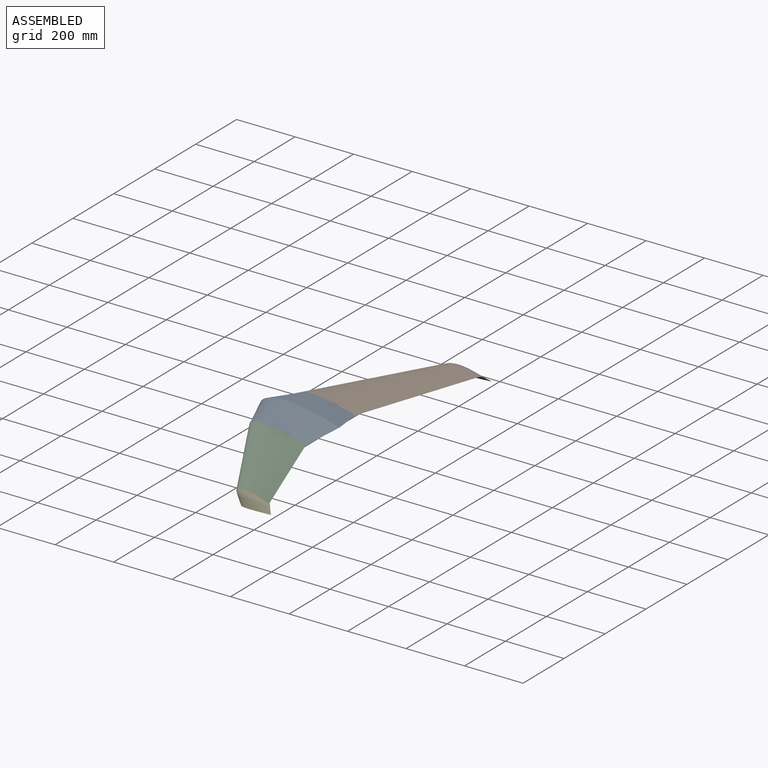
[diagram: assembled view]
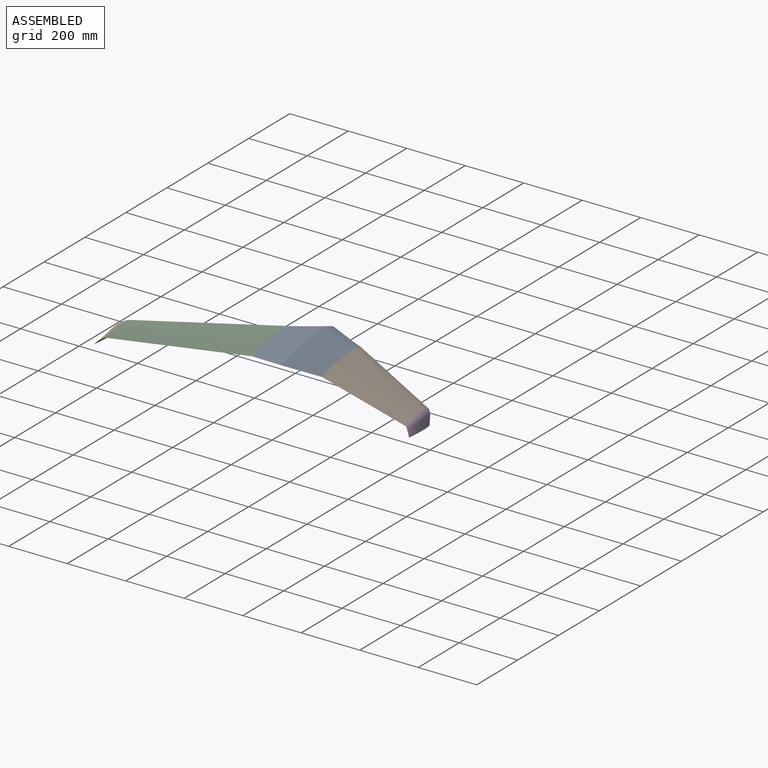
[diagram: assembled view, second angle]
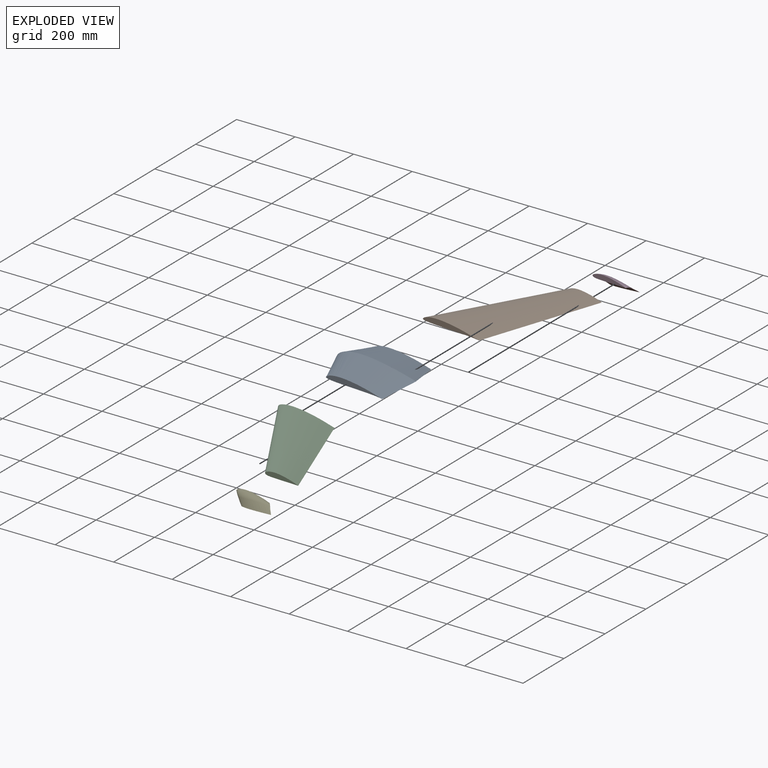
[diagram: exploded view]
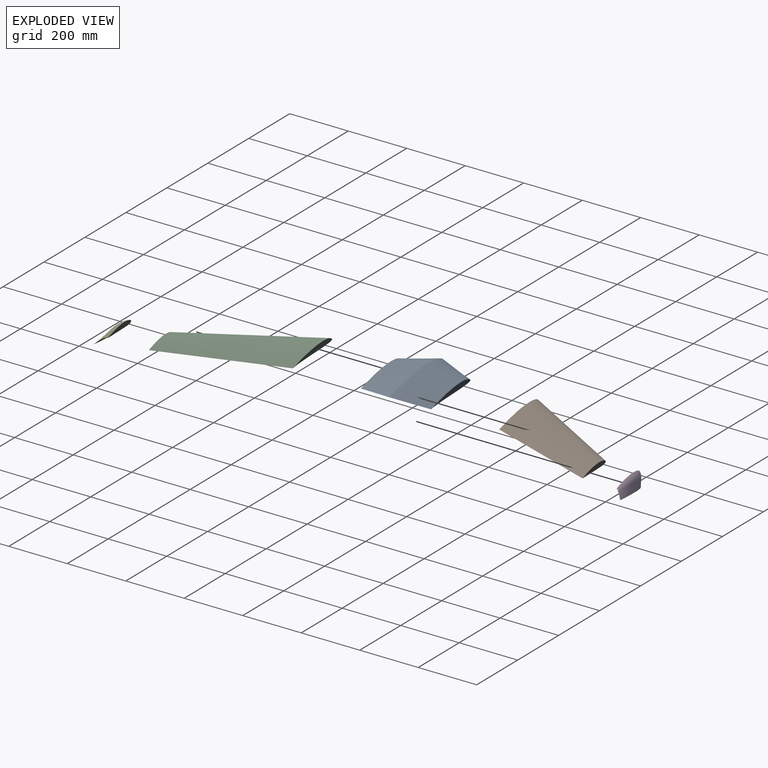
[diagram: exploded view, second angle]
FCSTD DOCUMENT  (FreeCAD 1.0R39319 (Git))
Label: Plane
License: All rights reserved
LicenseURL: https://en.wikipedia.org/wiki/All_rights_reserved
objects: App::Link×5, App::FeaturePython×1, Assembly::JointGroup×1, Assembly::AssemblyObject×1
EXTERNAL_REF file=Body.FCStd obj=Part
EXTERNAL_REF file=Wing.FCStd obj=Part
EXTERNAL_REF file=Winglet.FCStd obj=Part

FEATURE [App::Link] Part  label="Body"
  LinkedObject = -> <external Body.FCStd>#Part
FEATURE [App::FeaturePython] GroundedJoint  # Assembly grounded joint (typed FeaturePython)
  ObjectToGround = -> Part
FEATURE [Assembly::JointGroup] Joints
  Group = -> [GroundedJoint]
FEATURE [App::Link] Part001  label="Wing Right"
  LinkedObject = -> <external Wing.FCStd>#Part
FEATURE [App::Link] Part002  label="Wing Left"
  LinkedObject = -> <external Wing.FCStd>#Part
  ScaleVector = (1,-1,1)
FEATURE [App::Link] Part003  label="Winglet Right"
  LinkedObject = -> <external Winglet.FCStd>#Part
FEATURE [App::Link] Part004  label="Winglet Left"
  LinkedObject = -> <external Winglet.FCStd>#Part
  ScaleVector = (1,-1,1)
FEATURE [Assembly::AssemblyObject] Assembly
  Group = -> [Joints,Part,GroundedJoint,Part001,Part002,Part003,Part004]
  Origin = -> Origin
  Type = Assembly

RESOLVED EXTERNAL PARTS (link-assembly join: the EXTERNAL_REF files above that resolve inside this repo's crawl, each included once):
---- part Body.FCStd = doc fcstd_c8153e8609d0 ----
FCSTD DOCUMENT  (FreeCAD 1.0R39319 (Git))
Label: Body
License: All rights reserved
LicenseURL: https://en.wikipedia.org/wiki/All_rights_reserved
objects: App::DocumentObjectGroup×3, PartDesign::SubShapeBinder×2, Part::FeaturePython×2, Part::Part2DObjectPython×2, Part::Loft×1, Part::Mirroring×1, App::Part×1
note: 8 computed .brp shape members not serialized (recipe doc carries the construction recipe); baked Part::Feature solids carry a one-line shape summary decoded from their .brp
EXTERNAL_REF file=Spreadsheet.FCStd obj=plane

FEATURE [PartDesign::SubShapeBinder] Binder  label="Body Airfoil Binder"
  BindCopyOnChange = 0
  BindMode = 0
  ClaimChildren = false
  Context = -> Part [Binder.]
  Fuse = false
  MakeFace = true
  OffsetFill = false
  OffsetIntersection = false
  OffsetJoinType = 0
  OffsetOpenResult = false
  PartialLoad = false
  Placement = pos=(0,0,0) rot=(-1,0,0;4.71239rad)
  Refine = true
  Relative = true
  Support = -> [naca0020]
  _Version = 2
FEATURE [PartDesign::SubShapeBinder] Binder001  label="Wing Base Binder"
  BindCopyOnChange = 0
  BindMode = 0
  ClaimChildren = false
  Context = -> Part [Binder001.]
  Fuse = false
  MakeFace = true
  OffsetFill = false
  OffsetIntersection = false
  OffsetJoinType = 0
  OffsetOpenResult = false
  PartialLoad = false
  Placement = pos=(0,0,0) rot=(1,0,0;1.5708rad)
  Refine = true
  Relative = true
  Support = -> [sd7032]
  _Version = 2
FEATURE [Part::FeaturePython] Clone001  label="Wing Base Binder001"  # Draft clone (typed FeaturePython)
  AttacherType = Attacher::AttachEngine3D
  AttachmentOffset = pos=(48.5542,0,-120) rot=(0,0,1;-0.084525rad)
  AttachmentSupport = -> [XZ_Plane001]
  Fuse = false
  MapMode = 5
  Objects = -> [Binder001]
  Placement = pos=(48.5542,120,-2.66e-14) rot=(-0.998217,-0.042212,0.042212;4.7106rad)
  Scale = (193.508,193.508,1)
  expr: .AttachmentOffset.Base.x = <<Spreadsheet>>#plane.wing_base_start * <<Spreadsheet>>#plane.body_len * 1000
  expr: .AttachmentOffset.Base.y = 0
  expr: .AttachmentOffset.Base.z = -<<Spreadsheet>>#plane.body_span * 1000
  expr: .AttachmentOffset.Rotation.Angle = -1 * <<Spreadsheet>>#plane.attack_angle
  expr: .Placement.Base.x = <<Spreadsheet>>#plane.body_len * <<Spreadsheet>>#plane.wing_base_start * 1000
  expr: .Placement.Base.y = <<Spreadsheet>>#plane.body_span * 1000
  expr: .Placement.Base.z = <<Spreadsheet>>#plane.wing_lift * 1000 * <<Spreadsheet>>#plane.body_height
  expr: .Scale.x = <<Spreadsheet>>#plane.wing_chord * 1000
  expr: .Scale.y = <<Spreadsheet>>#plane.wing_chord * 1000 * <<Spreadsheet>>#plane.scale_y_wing_base
FEATURE [Part::FeaturePython] Clone  label="Body Airfoil Draft"  # Draft clone (typed FeaturePython)
  AttacherType = Attacher::AttachEngine3D
  Fuse = false
  Objects = -> [Binder]
  Placement = pos=(0,0,0) rot=(-1,0,0;4.71239rad)
  Scale = (272.05,349.916,1)
  expr: .Scale.x = <<Spreadsheet>>#plane.body_len * 1000
  expr: .Scale.y = <<Spreadsheet>>#plane.body_len * 1000 * <<Spreadsheet>>#plane.scale_y_body
FEATURE [Part::Part2DObjectPython] Wire  # Draft 2D object (typed FeaturePython)
  Area = 0.136678
  ChamferSize = 0
  Closed = true
  End = (0.970479,-0.00888,0)
  FilletRadius = 0
  Length = 2.08959
  MakeFace = true
  Points = (69) [(1,0,0),(0.970479,0.00888,0),(0.940907,0.015433,0),(0.911288,0.02177,0),(0.881625,0.027901,0),(0.851923,0.033832,0),(0.822181,0.039569,0),+62 more]
  Start = (1,0,0)
  Subdivisions = 0
FEATURE [App::DocumentObjectGroup] naca0020
  Group = -> [Wire]
FEATURE [Part::Part2DObjectPython] Wire001  # Draft 2D object (typed FeaturePython)
  Area = 0.0641761
  ChamferSize = 0
  Closed = true
  End = (0.970594,0.002256,0)
  FilletRadius = 0
  Length = 2.03286
  MakeFace = true
  Points = (69) [(1,0,0),(0.970931,0.004971,0),(0.941994,0.010676,0),(0.913096,0.016568,0),(0.884197,0.022463,0),(0.855281,0.028266,0),(0.826327,0.033885,0),+62 more]
  Start = (1,0,0)
  Subdivisions = 0
FEATURE [App::DocumentObjectGroup] sd7032
  Group = -> [Wire001]
FEATURE [App::DocumentObjectGroup] Group001  label="Airfoils Low Poly"
  Group = -> [naca0020,sd7032]
FEATURE [Part::Loft] Loft
  Closed = false
  MaxDegree = 5
  Ruled = false
  Sections = -> [Clone001,Clone]
  Solid = true
FEATURE [Part::Mirroring] Part__Mirroring  label="Loft (Mirror #1)"
  Base = (0,0,0)
  Normal = (0,1,0)
  Source = -> Loft
FEATURE [App::Part] Part
  Group = -> [Group001,Binder,Clone,Binder001,Clone001,Loft,Part__Mirroring,Wire,naca0020,Wire001,sd7032]
  Origin = -> Origin001
---- part Wing.FCStd = doc fcstd_2af39ecfcbb7 ----
FCSTD DOCUMENT  (FreeCAD 1.0R39319 (Git))
Label: Wing
License: All rights reserved
LicenseURL: https://en.wikipedia.org/wiki/All_rights_reserved
objects: App::DocumentObjectGroup×3, Part::Part2DObjectPython×2, PartDesign::SubShapeBinder×2, Part::FeaturePython×2, Part::Loft×1, App::Part×1
note: 7 computed .brp shape members not serialized (recipe doc carries the construction recipe); baked Part::Feature solids carry a one-line shape summary decoded from their .brp
EXTERNAL_REF file=Spreadsheet.FCStd obj=plane

FEATURE [Part::Part2DObjectPython] Wire  # Draft 2D object (typed FeaturePython)
  Area = 0.0641761
  ChamferSize = 0
  Closed = true
  End = (0.970594,0.002256,0)
  FilletRadius = 0
  Length = 2.03286
  MakeFace = true
  Points = (69) [(1,0,0),(0.970931,0.004971,0),(0.941994,0.010676,0),(0.913096,0.016568,0),(0.884197,0.022463,0),(0.855281,0.028266,0),(0.826327,0.033885,0),+62 more]
  Start = (1,0,0)
  Subdivisions = 0
FEATURE [App::DocumentObjectGroup] sd7032
  Group = -> [Wire]
FEATURE [Part::Part2DObjectPython] Wire001  # Draft 2D object (typed FeaturePython)
  Area = 0.102817
  ChamferSize = 0
  Closed = true
  End = (0.969889,-0.002758,0)
  FilletRadius = 0
  Length = 2.06327
  MakeFace = true
  Points = (69) [(1,0,0),(0.971604,0.010359,0),(0.942895,0.018808,0),(0.914088,0.026914,0),(0.885187,0.034682,0),(0.856199,0.042118,0),(0.827128,0.049224,0),+62 more]
  Start = (1,0,0)
  Subdivisions = 0
FEATURE [App::DocumentObjectGroup] naca4415
  Group = -> [Wire001]
FEATURE [App::DocumentObjectGroup] Group  label="Airfoils Low Poly"
  Group = -> [sd7032,naca4415]
FEATURE [PartDesign::SubShapeBinder] Binder  label="Wing Base"
  BindCopyOnChange = 0
  BindMode = 0
  ClaimChildren = false
  Context = -> Part [Binder.]
  Fuse = false
  MakeFace = true
  OffsetFill = false
  OffsetIntersection = false
  OffsetJoinType = 0
  OffsetOpenResult = false
  PartialLoad = false
  Placement = pos=(0,0,0) rot=(1,0,0;1.5708rad)
  Refine = true
  Relative = true
  Support = -> [sd7032]
  _Version = 2
FEATURE [PartDesign::SubShapeBinder] Binder001  label="Wing Tip"
  BindCopyOnChange = 0
  BindMode = 0
  ClaimChildren = false
  Context = -> Part [Binder001.]
  Fuse = false
  MakeFace = true
  OffsetFill = false
  OffsetIntersection = false
  OffsetJoinType = 0
  OffsetOpenResult = false
  PartialLoad = false
  Placement = pos=(0,0,0) rot=(1,0,0;1.5708rad)
  Refine = true
  Relative = true
  Support = -> [naca4415]
  _Version = 2
FEATURE [Part::FeaturePython] Clone  label="Wing Base001"  # Draft clone (typed FeaturePython)
  AttacherType = Attacher::AttachEngine3D
  AttachmentOffset = pos=(48.5542,0,-120) rot=(0,0,1;-0.084525rad)
  AttachmentSupport = -> [XZ_Plane]
  Fuse = false
  MapMode = 5
  Objects = -> [Binder]
  Placement = pos=(48.5542,120,-2.66e-14) rot=(-0.998217,-0.042212,0.042212;4.7106rad)
  Scale = (193.508,193.508,1)
  expr: .AttachmentOffset.Base.x = <<Spreadsheet>>#plane.body_len * <<Spreadsheet>>#plane.wing_base_start * 1000
  expr: .AttachmentOffset.Base.y = <<Spreadsheet>>#plane.wing_lift * 1000 * <<Spreadsheet>>#plane.body_height
  expr: .AttachmentOffset.Base.z = -<<Spreadsheet>>#plane.body_span * 1000
  expr: .AttachmentOffset.Rotation.Angle = -<<Spreadsheet>>#plane.attack_angle
  expr: .Scale.x = <<Spreadsheet>>#plane.wing_chord * 1000
  expr: .Scale.y = <<Spreadsheet>>#plane.wing_chord * 1000 * <<Spreadsheet>>#plane.scale_y_wing_base
FEATURE [Part::FeaturePython] Clone001  label="Wing Tip001"  # Draft clone (typed FeaturePython)
  AttacherType = Attacher::AttachEngine3D
  AttachmentOffset = pos=(275.624,1.47756,-508.507) rot=(0,0,1;-0.078559rad)
  AttachmentSupport = -> [XZ_Plane]
  Fuse = false
  MapMode = 5
  Objects = -> [Binder001]
  Placement = pos=(275.624,508.507,1.47756) rot=(-0.998459,-0.039239,0.039239;4.71085rad)
  Scale = (113.823,113.823,1)
  expr: .AttachmentOffset.Base.x = <<Spreadsheet>>#plane.body_len * <<Spreadsheet>>#plane.wing_base_start * 1000 + sin(<<Spreadsheet>>#plane.sweep) * <<Spreadsheet>>#plane.leading_edge_length * 1000
  expr: .AttachmentOffset.Base.y = <<Spreadsheet>>#plane.wing_lift * 1000 * <<Spreadsheet>>#plane.body_height + sin(<<Spreadsheet>>#plane.dihedral) * <<Spreadsheet>>#plane.leading_edge_length * 1000
  expr: .AttachmentOffset.Base.z = -<<Spreadsheet>>#plane.body_span * 1000 - cos(<<Spreadsheet>>#plane.sweep) * cos(<<Spreadsheet>>#plane.dihedral) * <<Spreadsheet>>#plane.leading_edge_length * 1000
  expr: .AttachmentOffset.Rotation.Angle = -<<Spreadsheet>>#plane.attack_angle - <<Spreadsheet>>#plane.washout
  expr: .Scale.x = <<Spreadsheet>>#plane.wing_chord * 1000 * <<Spreadsheet>>#plane.taper_ratio
  expr: .Scale.y = <<Spreadsheet>>#plane.wing_chord * <<Spreadsheet>>#plane.taper_ratio * <<Spreadsheet>>#plane.scale_y_wing_tip * 1000
FEATURE [Part::Loft] Loft
  Closed = false
  MaxDegree = 5
  Ruled = true
  Sections = -> [Clone,Clone001]
  Solid = true
FEATURE [App::Part] Part
  Group = -> [Wire,Wire001,naca4415,sd7032,Group,Binder,Binder001,Clone,Clone001,Loft]
  Origin = -> Origin
  expr: .Placement.Base.x = 0
  expr: .Placement.Base.y = 0
  expr: .Placement.Base.z = 0
---- part Winglet.FCStd = doc fcstd_33927f41b779 ----
FCSTD DOCUMENT  (FreeCAD 1.0R39319 (Git))
Label: Winglet
License: All rights reserved
LicenseURL: https://en.wikipedia.org/wiki/All_rights_reserved
objects: Part::FeaturePython×4, App::DocumentObjectGroup×3, PartDesign::SubShapeBinder×3, Part::Part2DObjectPython×2, Sketcher::SketchObject×1, Part::Sweep×1, App::Part×1
note: 12 computed .brp shape members not serialized (recipe doc carries the construction recipe); baked Part::Feature solids carry a one-line shape summary decoded from their .brp
EXTERNAL_REF file=Spreadsheet.FCStd obj=plane

FEATURE [Part::Part2DObjectPython] Wire  # Draft 2D object (typed FeaturePython)
  Area = 0.0682453
  ChamferSize = 0
  Closed = true
  End = (0.970786,-0.004405,0)
  FilletRadius = 0
  Length = 2.02397
  MakeFace = true
  Points = (69) [(1,0,0),(0.970786,0.004405,0),(0.941558,0.007646,0),(0.912319,0.010777,0),(0.883069,0.013804,0),(0.853809,0.016731,0),(0.824539,0.019561,0),+62 more]
  Start = (1,0,0)
  Subdivisions = 0
FEATURE [App::DocumentObjectGroup] naca0010
  Group = -> [Wire]
FEATURE [Part::Part2DObjectPython] Wire001  # Draft 2D object (typed FeaturePython)
  Area = 0.102817
  ChamferSize = 0
  Closed = true
  End = (0.969889,-0.002758,0)
  FilletRadius = 0
  Length = 2.06327
  MakeFace = true
  Points = (69) [(1,0,0),(0.971604,0.010359,0),(0.942895,0.018808,0),(0.914088,0.026914,0),(0.885187,0.034682,0),(0.856199,0.042118,0),(0.827128,0.049224,0),+62 more]
  Start = (1,0,0)
  Subdivisions = 0
FEATURE [App::DocumentObjectGroup] naca4415
  Group = -> [Wire001]
FEATURE [App::DocumentObjectGroup] Group  label="Airfoils Low Poly"
  Group = -> [naca0010,naca4415]
FEATURE [PartDesign::SubShapeBinder] Binder  label="Wing Tip"
  BindCopyOnChange = 0
  BindMode = 0
  ClaimChildren = false
  Context = -> Part [Binder.]
  Fuse = false
  MakeFace = true
  OffsetFill = false
  OffsetIntersection = false
  OffsetJoinType = 0
  OffsetOpenResult = false
  PartialLoad = false
  Placement = pos=(0,0,0) rot=(1,0,0;1.5708rad)
  Refine = true
  Relative = true
  Support = -> [naca4415]
  _Version = 2
FEATURE [PartDesign::SubShapeBinder] Binder001  label="Winglet Tip"
  BindCopyOnChange = 0
  BindMode = 0
  ClaimChildren = false
  Context = -> Part [Binder001.]
  Fuse = false
  MakeFace = true
  OffsetFill = false
  OffsetIntersection = false
  OffsetJoinType = 0
  OffsetOpenResult = false
  PartialLoad = false
  Placement = pos=(0,0,0) rot=(1,0,0;1.5708rad)
  Refine = true
  Relative = true
  Support = -> [Wire]
  _Version = 2
FEATURE [PartDesign::SubShapeBinder] Binder002  label="Winglet Curve End"
  BindCopyOnChange = 0
  BindMode = 0
  ClaimChildren = false
  Context = -> Part [Binder002.]
  Fuse = false
  MakeFace = true
  OffsetFill = false
  OffsetIntersection = false
  OffsetJoinType = 0
  OffsetOpenResult = false
  PartialLoad = false
  Placement = pos=(0,0,0) rot=(1,0,0;1.5708rad)
  Refine = true
  Relative = true
  Support = -> [Wire]
  _Version = 2
FEATURE [Part::FeaturePython] Clone  label="Wing Tip001"  # Draft clone (typed FeaturePython)
  AttacherType = Attacher::AttachEngine3D
  AttachmentOffset = pos=(275.624,1.47756,-508.507) rot=(0,0,1;-0.078559rad)
  AttachmentSupport = -> [XZ_Plane]
  Fuse = false
  MapMode = 5
  Objects = -> [Binder]
  Placement = pos=(275.624,508.507,1.47756) rot=(-0.998459,-0.039239,0.039239;4.71085rad)
  Scale = (113.823,113.823,1)
  expr: .AttachmentOffset.Base.x = <<Spreadsheet>>#plane.body_len * <<Spreadsheet>>#plane.wing_base_start * 1000 + sin(<<Spreadsheet>>#plane.sweep) * <<Spreadsheet>>#plane.leading_edge_length * 1000
  expr: .AttachmentOffset.Base.y = sin(Spreadsheet#plane.dihedral) * Spreadsheet#plane.leading_edge_length * 1000
  expr: .AttachmentOffset.Base.z = -(Spreadsheet#plane.body_span * 1000 + cos(Spreadsheet#plane.sweep) * cos(Spreadsheet#plane.dihedral) * Spreadsheet#plane.leading_edge_length * 1000)
  expr: .AttachmentOffset.Rotation.Angle = -Spreadsheet#plane.attack_angle - Spreadsheet#plane.washout
  expr: .Scale.x = <<Spreadsheet>>#plane.wing_chord * 1000 * <<Spreadsheet>>#plane.taper_ratio
  expr: .Scale.y = <<Spreadsheet>>#plane.wing_chord * <<Spreadsheet>>#plane.taper_ratio * <<Spreadsheet>>#plane.scale_y_wing_tip * 1000
FEATURE [Part::FeaturePython] Clone002  label="Winglet Tip003"  # Draft clone (typed FeaturePython)
  AttacherType = Attacher::AttachEngine3D
  AttachmentOffset = pos=(312.874,-25.1291,-537.009) rot=(1,0,0;1.5708rad)
  AttachmentSupport = -> [XZ_Plane]
  Fuse = false
  MapMode = 5
  Objects = -> [Binder001]
  Placement = pos=(312.874,537.009,-25.1291) rot=(1,0,0;3.14159rad)
  Scale = (102.999,102.999,1)
  expr: .AttachmentOffset.Base.x = -sin(Spreadsheet#plane.winglet_angle) * Spreadsheet#plane.winglet_radius * 1000 * tan(Spreadsheet#plane.winglet_sweep) + sin(Spreadsheet#plane.winglet_sweep) * Spreadsheet#plane.winglet_leading_edge_len * 1000 + Spreadsheet#plane.body_len * Spreadsheet#plane.wing_base_start * 1000 + sin(Spreadsheet#plane.sweep) * Spreadsheet#plane.leading_edge_length * 1000
  expr: .AttachmentOffset.Base.y = -1 * ((1 - cos(Spreadsheet#plane.winglet_angle)) * Spreadsheet#plane.winglet_radius * 1000 - sin(Spreadsheet#plane.winglet_angle) * cos(Spreadsheet#plane.winglet_sweep) * Spreadsheet#plane.winglet_leading_edge_len * 1000) + sin(Spreadsheet#plane.dihedral) * Spreadsheet#plane.leading_edge_length * 1000
  expr: .AttachmentOffset.Base.z = sin(Spreadsheet#plane.winglet_angle) * Spreadsheet#plane.winglet_radius * 1000 - cos(Spreadsheet#plane.winglet_angle) * cos(Spreadsheet#plane.winglet_sweep) * Spreadsheet#plane.winglet_leading_edge_len * 1000 - (Spreadsheet#plane.body_span * 1000 + cos(Spreadsheet#plane.sweep) * cos(Spreadsheet#plane.dihedral) * Spreadsheet#plane.leading_edge_length * 1000)
  expr: .AttachmentOffset.Rotation.Angle = 90
  expr: .Scale.x = Spreadsheet#plane.wing_chord * Spreadsheet#plane.taper_ratio * Spreadsheet#plane.winglet_taper_ratio * 1000
  expr: .Scale.y = Spreadsheet#plane.wing_chord * Spreadsheet#plane.taper_ratio * Spreadsheet#plane.winglet_taper_ratio * 1000
FEATURE [Sketcher::SketchObject] Sketch
  ArcFitTolerance = 1e-06
  AttachmentOffset = pos=(508.507,1.47756,275.624) rot=(0,1,0;0rad)
  AttachmentSupport = -> [YZ_Plane]
  FullyConstrained = true
  MakeInternals = false
  MapMode = 5
  Placement = pos=(275.624,508.507,1.47756) rot=(0.57735,0.57735,0.57735;2.0944rad)
  expr: .AttachmentOffset.Base.x = Spreadsheet#plane.body_span * 1000 + cos(Spreadsheet#plane.sweep) * cos(Spreadsheet#plane.dihedral) * Spreadsheet#plane.leading_edge_length * 1000
  expr: .AttachmentOffset.Base.y = sin(Spreadsheet#plane.dihedral) * Spreadsheet#plane.leading_edge_length * 1000
  expr: .AttachmentOffset.Base.z = <<Spreadsheet>>#plane.body_len * <<Spreadsheet>>#plane.wing_base_start * 1000 + sin(<<Spreadsheet>>#plane.sweep) * <<Spreadsheet>>#plane.leading_edge_length * 1000
  expr: .AttachmentOffset.Rotation.Angle = 0
  expr: Constraints[2] = Spreadsheet#plane.winglet_radius * 1000
  expr: Constraints[3] = -Spreadsheet#plane.winglet_angle
  expr: Constraints[5] = Spreadsheet#plane.winglet_angle + 90
  expr: Constraints[6] = Spreadsheet#plane.winglet_leading_edge_len * 1000 * cos(Spreadsheet#plane.winglet_sweep)
  sketch-geometry (2):
    g0: ArcOfCircle CenterX=0 CenterY=-19.1236 CenterZ=0 NormalX=0 NormalY=0 NormalZ=1 AngleXU=0 Radius=19.1236 StartAngle=0.607806 EndAngle=1.5708
    g1: LineSegment StartX=15.6986 StartY=-8.20274 StartZ=0 EndX=28.5015 EndY=-26.6067 EndZ=0
  constraints (7):
    c: PointOnObject(g0,g-2)
    c: Coincident(g0,g-1)
    c: Radius(g0) = 19.1236
    c: Angle(g0) = 0.96299
    c: Coincident(g1,g0)
    c: Angle(g-2,g1) = 0.607806
    c: Distance(g1,g1) = 22.4191
FEATURE [Part::FeaturePython] Clone003  label="Winglet Tip Toed neg"  # Draft clone (typed FeaturePython)
  AttacherType = Attacher::AttachEngine3D
  AttachmentOffset = pos=(0,0,0) rot=(0,0,1;0.023489rad)
  AttachmentSupport = -> [Clone002]
  Fuse = false
  MapMode = 2
  Objects = -> [Clone002]
  Placement = pos=(312.874,537.009,-25.1291) rot=(0.999931,-0.011744,0;3.14159rad)
  Scale = (1,1,1)
  expr: .AttachmentOffset.Base.x = 0
  expr: .AttachmentOffset.Base.y = 0
  expr: .AttachmentOffset.Base.z = 0
  expr: .AttachmentOffset.Rotation.Angle = -Spreadsheet#plane.winglet_toe
  expr: .AttachmentOffset.Rotation.Yaw = Spreadsheet#plane.winglet_toe
  expr: .Placement.Rotation.Yaw = Spreadsheet#plane.winglet_toe
FEATURE [Part::FeaturePython] Clone004  label="Winglet Tip Toed"  # Draft clone (typed FeaturePython)
  AttacherType = Attacher::AttachEngine3D
  AttachmentOffset = pos=(0,0,0) rot=(0,0,-1;0.023489rad)
  AttachmentSupport = -> [Clone002]
  Fuse = false
  MapMode = 2
  Objects = -> [Clone002]
  Placement = pos=(312.874,537.009,-25.1291) rot=(0.999931,0.011744,0;3.14159rad)
  Scale = (1,1,1)
  expr: .AttachmentOffset.Rotation.Angle = Spreadsheet#plane.winglet_toe
FEATURE [Part::Sweep] Sweep
  Frenet = true
  Sections = -> [Clone,Clone004]
  Solid = true
  Spine = -> Sketch [Edge2,Edge1]
  Transition = 1
FEATURE [App::Part] Part
  Group = -> [Group,Wire,naca0010,Wire001,naca4415,Binder002,Binder001,Binder,Clone,Clone002,Sketch,Clone003,Clone004,Sweep]
  Origin = -> Origin
